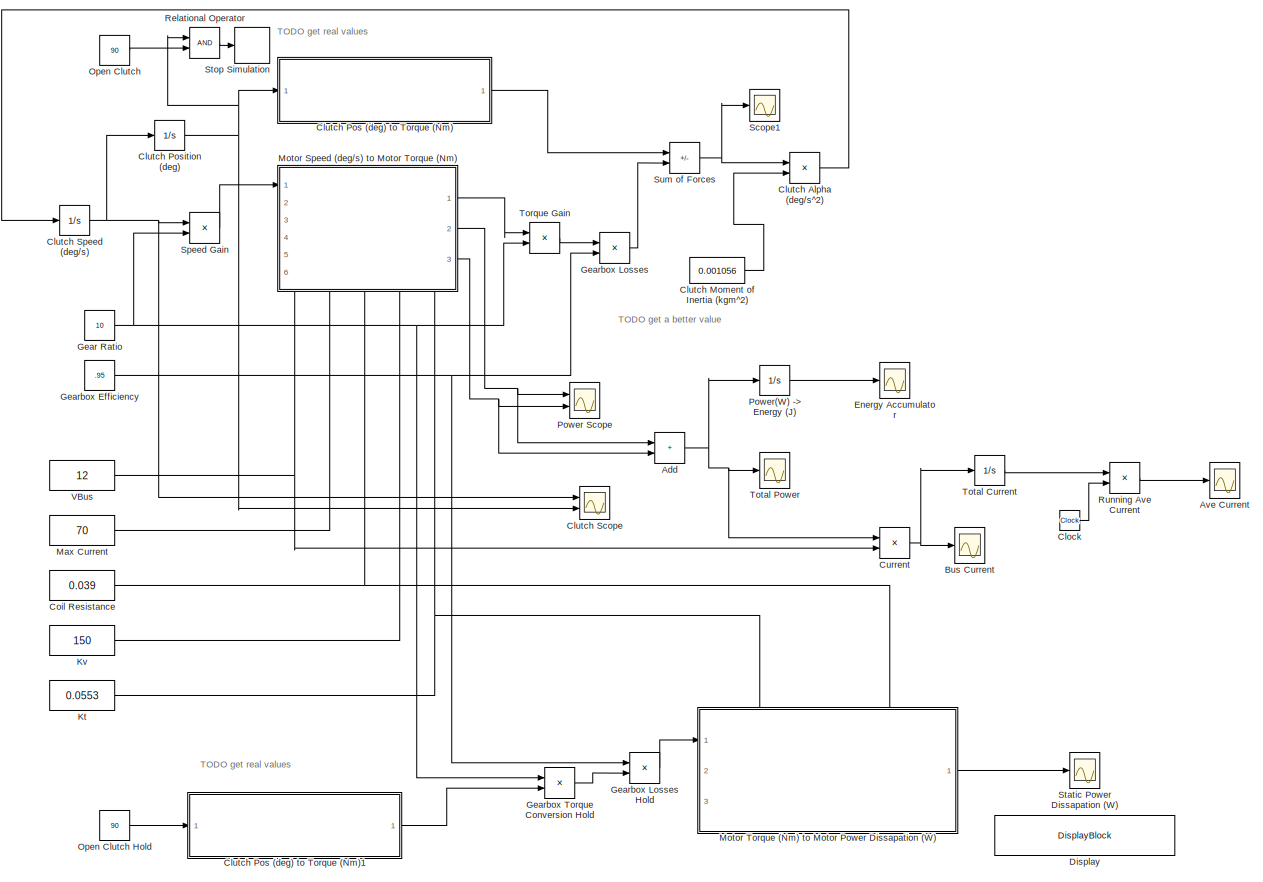
[diagram: root canvas - part 1/1, most of the canvas]
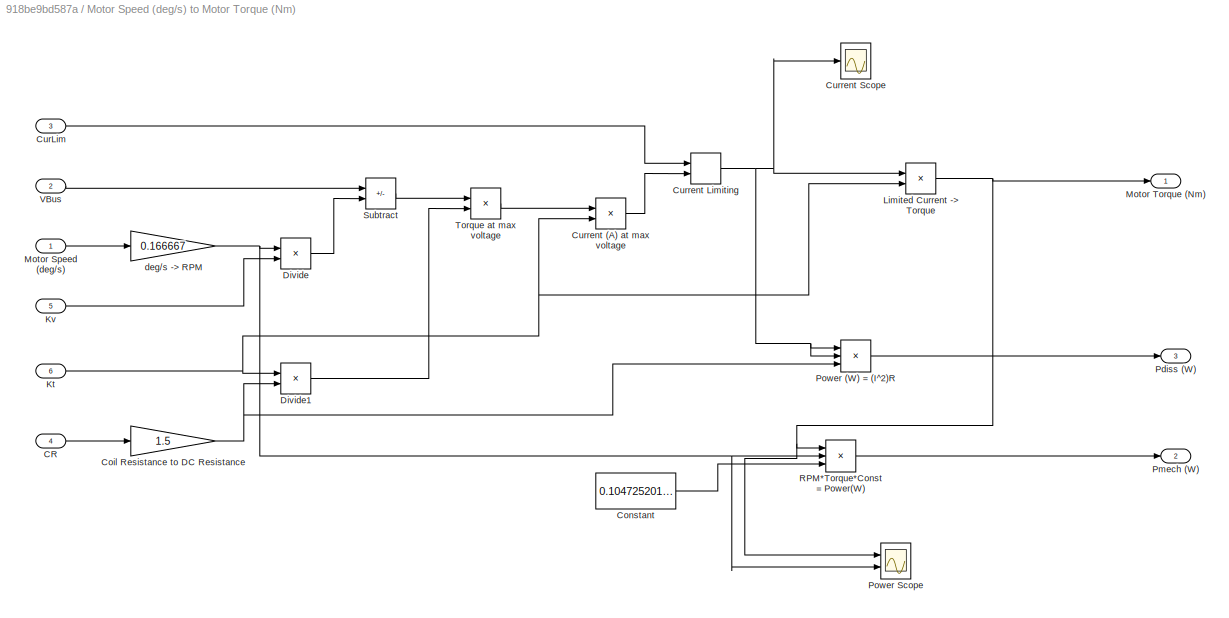
MODEL slx_918be9bd587a
KIND model
CONFIG AbsTol = auto
CONFIG EnableMultiTasking = off
CONFIG FixedStep = auto
CONFIG MaxStep = auto
CONFIG MinStep = auto
CONFIG RelTol = 1e-3
CONFIG SampleTimeConstraint = Unconstrained
CONFIG SolverName = VariableStepAuto
CONFIG StartTime = 0.0
CONFIG StopTime = 1
BLOCK [Sum] Add
  IconShape = rectangular
  Ports = [2, 1]
BLOCK [Scope] Ave Current
  Floating = off
  NumInputPorts = 1
  Ports = [1]
  ScopeSpecificationString = Simulink.scopes.TimeScopeBlockCfg('CurrentConfiguration', extmgr.ConfigurationSet(extmgr.Configuration('Core','General UI',true),extmgr.Configuration('Core','Source UI',true),extmgr.Configuration('Sources','WiredSimulink',true,'DataLoggingVariableName','ScopeData4'),extmgr.Configuration('Visuals','Time Domain',true,'SerializedDisplays',{struct('MinYLimReal','21.28195','MaxYLimReal','47.33747','YLa...<+1533ch>
BLOCK [Scope] Bus Current
  Floating = off
  NumInputPorts = 1
  Ports = [1]
  ScopeSpecificationString = Simulink.scopes.TimeScopeBlockCfg('CurrentConfiguration', extmgr.ConfigurationSet(extmgr.Configuration('Core','General UI',true),extmgr.Configuration('Core','Source UI',true),extmgr.Configuration('Sources','WiredSimulink',true,'DataLoggingVariableName','ScopeData3'),extmgr.Configuration('Visuals','Time Domain',true,'SerializedDisplays',{struct('MinYLimReal','11.04462','MaxYLimReal','69.82307','YLa...<+1545ch>
BLOCK [Clock] Clock
BLOCK [Product] Clutch Alpha (deg//s^2)
  Inputs = */
  Ports = [2, 1]
BLOCK [Constant] Clutch Moment of Inertia (kgm^2)
  Value = 0.001056
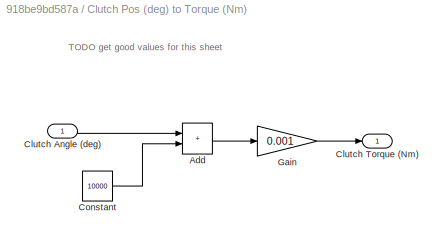
BLOCK [SubSystem] Clutch Pos (deg) to Torque (Nm)
  Ports = [1, 1]
  RequestExecContextInheritance = off
BLOCK [Sum] Clutch Pos (deg) to Torque (Nm)/Add
  IconShape = rectangular
  Ports = [2, 1]
BLOCK [Inport] Clutch Pos (deg) to Torque (Nm)/Clutch Angle (deg)
BLOCK [Outport] Clutch Pos (deg) to Torque (Nm)/Clutch Torque (Nm)
BLOCK [Constant] Clutch Pos (deg) to Torque (Nm)/Constant
  Value = 10000
BLOCK [Gain] Clutch Pos (deg) to Torque (Nm)/Gain
  Gain = 0.001
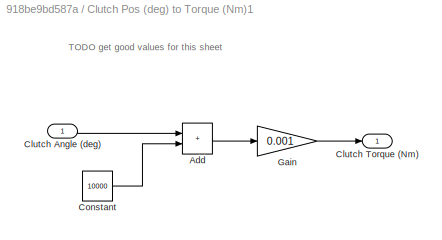
BLOCK [SubSystem] Clutch Pos (deg) to Torque (Nm)1
  Ports = [1, 1]
  RequestExecContextInheritance = off
BLOCK [Sum] Clutch Pos (deg) to Torque (Nm)1/Add
  IconShape = rectangular
  Ports = [2, 1]
BLOCK [Inport] Clutch Pos (deg) to Torque (Nm)1/Clutch Angle (deg)
BLOCK [Outport] Clutch Pos (deg) to Torque (Nm)1/Clutch Torque (Nm)
BLOCK [Constant] Clutch Pos (deg) to Torque (Nm)1/Constant
  Value = 10000
BLOCK [Gain] Clutch Pos (deg) to Torque (Nm)1/Gain
  Gain = 0.001
BLOCK [Integrator] Clutch Position (deg)
  Ports = [1, 1]
BLOCK [Scope] Clutch Scope
  Floating = off
  NumInputPorts = 2
  Ports = [2]
  ScopeSpecificationString = Simulink.scopes.TimeScopeBlockCfg('CurrentConfiguration', extmgr.ConfigurationSet(extmgr.Configuration('Core','General UI',true),extmgr.Configuration('Core','Source UI',true),extmgr.Configuration('Sources','WiredSimulink',true),extmgr.Configuration('Visuals','Time Domain',true,'SerializedDisplays',{struct('MinYLimReal','-122.3582','MaxYLimReal','1101.22379','YLabelReal','','MinYLimMag',' 0.00000',...<+1432ch>
BLOCK [Integrator] Clutch Speed (deg//s)
  Ports = [1, 1]
BLOCK [Constant] Coil Resistance
  Value = 0.039
BLOCK [Product] Current
  Inputs = */
  Ports = [2, 1]
BLOCK [DisplayBlock] Display
  Format = short
  LabelPosition = Hide
  Transparency = 1
BLOCK [Scope] Energy Accumulator
  Floating = off
  NumInputPorts = 1
  Ports = [1]
  ScopeSpecificationString = Simulink.scopes.TimeScopeBlockCfg('CurrentConfiguration', extmgr.ConfigurationSet(extmgr.Configuration('Core','General UI',true),extmgr.Configuration('Core','Source UI',true),extmgr.Configuration('Sources','WiredSimulink',true,'DataLoggingVariableName','ScopeData2'),extmgr.Configuration('Visuals','Time Domain',true,'SerializedDisplays',{struct('MinYLimReal','-4.72008','MaxYLimReal','42.48074','YLa...<+1504ch>
BLOCK [Constant] Gear Ratio
  Value = 10
BLOCK [Constant] Gearbox Efficiency
  Value = .95
BLOCK [Product] Gearbox Losses
  Ports = [2, 1]
BLOCK [Product] Gearbox Losses Hold
  Ports = [2, 1]
BLOCK [Product] Gearbox Torque Conversion Hold
  Inputs = /*
  Ports = [2, 1]
BLOCK [Constant] Kt
  Value = 0.0553
BLOCK [Constant] Kv
  Value = 150
BLOCK [Constant] Max Current
  Value = 70
BLOCK [SubSystem] Motor Speed (deg//s) to Motor Torque (Nm)
  NameLocation = top
  PortSchema = {"entries":[{"content":{"sides":[{"content":{"connectorIds":["In1"]},"type":"ConnectorPlacement.EquallySpacedRectSide","uuid":"7e3d6259-f020-48d4-ab2f-cc02f3e205f3"},{"content":{"connectorIds":["Out1","Out2","Out3"],"side":"RIGHT"},"type":"ConnectorPlacement.EquallySpacedRectSide","uuid":"df711253-8a83-44a2-b4f6-36021a4fbdad"},{"content":{"connectorIds":[],"side":"TOP"},"type":"ConnectorPlacement....<+427ch>
  Ports = [6, 3]
  RequestExecContextInheritance = off
BLOCK [Inport] Motor Speed (deg//s) to Motor Torque (Nm)/CR
  Port = 4
BLOCK [Gain] Motor Speed (deg//s) to Motor Torque (Nm)/Coil Resistance to DC Resistance
  Gain = 1.5
BLOCK [Constant] Motor Speed (deg//s) to Motor Torque (Nm)/Constant
  Value = 0.10472520107
BLOCK [Inport] Motor Speed (deg//s) to Motor Torque (Nm)/CurLim
  Port = 3
BLOCK [Product] Motor Speed (deg//s) to Motor Torque (Nm)/Current (A) at max voltage
  Inputs = */
  Ports = [2, 1]
BLOCK [MinMax] Motor Speed (deg//s) to Motor Torque (Nm)/Current Limiting
  Inputs = 2
  Ports = [2, 1]
BLOCK [Scope] Motor Speed (deg//s) to Motor Torque (Nm)/Current Scope
  Floating = off
  NumInputPorts = 1
  Ports = [1]
  ScopeSpecificationString = Simulink.scopes.TimeScopeBlockCfg('CurrentConfiguration', extmgr.ConfigurationSet(extmgr.Configuration('Core','General UI',true),extmgr.Configuration('Core','Source UI',true),extmgr.Configuration('Sources','WiredSimulink',true,'DataLoggingVariableName','ScopeData2'),extmgr.Configuration('Visuals','Time Domain',true,'SerializedDisplays',{struct('MinYLimReal','12.8595','MaxYLimReal','76.34894','YLab...<+1475ch>
BLOCK [Product] Motor Speed (deg//s) to Motor Torque (Nm)/Divide
  Inputs = */
  Ports = [2, 1]
BLOCK [Product] Motor Speed (deg//s) to Motor Torque (Nm)/Divide1
  Inputs = */
  Ports = [2, 1]
BLOCK [Inport] Motor Speed (deg//s) to Motor Torque (Nm)/Kt
  Port = 6
BLOCK [Inport] Motor Speed (deg//s) to Motor Torque (Nm)/Kv
  Port = 5
BLOCK [Product] Motor Speed (deg//s) to Motor Torque (Nm)/Limited Current -> Torque
  Ports = [2, 1]
BLOCK [Inport] Motor Speed (deg//s) to Motor Torque (Nm)/Motor Speed (deg//s)
BLOCK [Outport] Motor Speed (deg//s) to Motor Torque (Nm)/Motor Torque (Nm)
BLOCK [Outport] Motor Speed (deg//s) to Motor Torque (Nm)/Pdiss (W)
  Port = 3
BLOCK [Outport] Motor Speed (deg//s) to Motor Torque (Nm)/Pmech (W)
  Port = 2
BLOCK [Product] Motor Speed (deg//s) to Motor Torque (Nm)/Power (W) = (I^2)R
  Inputs = 3
  Ports = [3, 1]
BLOCK [Scope] Motor Speed (deg//s) to Motor Torque (Nm)/Power Scope
  Floating = off
  NumInputPorts = 2
  Ports = [2]
  ScopeSpecificationString = Simulink.scopes.TimeScopeBlockCfg('CurrentConfiguration', extmgr.ConfigurationSet(extmgr.Configuration('Core','General UI',true),extmgr.Configuration('Core','Source UI',true),extmgr.Configuration('Sources','WiredSimulink',true,'DataLoggingVariableName','ScopeData1'),extmgr.Configuration('Visuals','Time Domain',true,'SerializedDisplays',{struct('MinYLimReal','-203.93074','MaxYLimReal','1835.37666',...<+1560ch>
BLOCK [Product] Motor Speed (deg//s) to Motor Torque (Nm)/RPM*Torque*Const = Power(W)
  Inputs = 3
  Ports = [3, 1]
BLOCK [Sum] Motor Speed (deg//s) to Motor Torque (Nm)/Subtract
  IconShape = rectangular
  Inputs = +-
  Ports = [2, 1]
BLOCK [Product] Motor Speed (deg//s) to Motor Torque (Nm)/Torque at max voltage
  Ports = [2, 1]
BLOCK [Inport] Motor Speed (deg//s) to Motor Torque (Nm)/VBus
  Port = 2
BLOCK [Gain] Motor Speed (deg//s) to Motor Torque (Nm)/deg//s -> RPM
  Gain = 0.166667
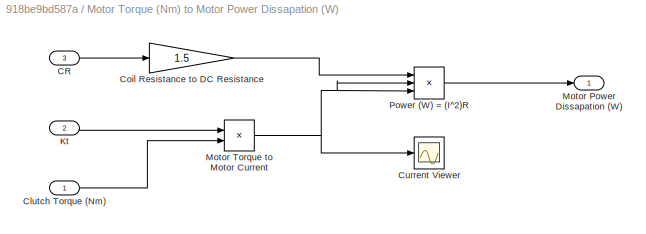
BLOCK [SubSystem] Motor Torque (Nm) to Motor Power Dissapation (W)
  PortSchema = {"entries":[{"content":{"sides":[{"content":{"connectorIds":["In1"]},"type":"ConnectorPlacement.EquallySpacedRectSide","uuid":"3ec64108-34b1-4214-af14-de7d9a6b89d7"},{"content":{"connectorIds":["Out1"],"side":"RIGHT"},"type":"ConnectorPlacement.EquallySpacedRectSide","uuid":"a66a176f-0d37-451a-b520-e1afd774ae54"},{"content":{"connectorIds":["In2","In3"],"side":"TOP"},"type":"ConnectorPlacement.Equ...<+251ch>
  Ports = [3, 1]
  RequestExecContextInheritance = off
BLOCK [Inport] Motor Torque (Nm) to Motor Power Dissapation (W)/CR
  Port = 3
BLOCK [Inport] Motor Torque (Nm) to Motor Power Dissapation (W)/Clutch Torque (Nm)
BLOCK [Gain] Motor Torque (Nm) to Motor Power Dissapation (W)/Coil Resistance to DC Resistance
  Gain = 1.5
BLOCK [Scope] Motor Torque (Nm) to Motor Power Dissapation (W)/Current Viewer
  Floating = off
  NumInputPorts = 1
  Ports = [1]
  ScopeSpecificationString = Simulink.scopes.TimeScopeBlockCfg('CurrentConfiguration', extmgr.ConfigurationSet(extmgr.Configuration('Core','General UI',true),extmgr.Configuration('Core','Source UI',true),extmgr.Configuration('Sources','WiredSimulink',true,'DataLoggingVariableName','ScopeData4'),extmgr.Configuration('Visuals','Time Domain',true,'SerializedDisplays',{struct('MinYLimReal','7.33363','MaxYLimReal','27.33363','YLab...<+1425ch>
BLOCK [Inport] Motor Torque (Nm) to Motor Power Dissapation (W)/Kt
  Port = 2
BLOCK [Outport] Motor Torque (Nm) to Motor Power Dissapation (W)/Motor Power Dissapation (W)
BLOCK [Product] Motor Torque (Nm) to Motor Power Dissapation (W)/Motor Torque to Motor Current
  Inputs = /*
  Ports = [2, 1]
BLOCK [Product] Motor Torque (Nm) to Motor Power Dissapation (W)/Power (W) = (I^2)R
  Inputs = 3
  Ports = [3, 1]
BLOCK [Constant] Open Clutch
  Value = 90
BLOCK [Constant] Open Clutch Hold
  Value = 90
BLOCK [Scope] Power Scope
  Floating = off
  NumInputPorts = 2
  Ports = [2]
  ScopeSpecificationString = Simulink.scopes.TimeScopeBlockCfg('CurrentConfiguration', extmgr.ConfigurationSet(extmgr.Configuration('Core','General UI',true),extmgr.Configuration('Core','Source UI',true),extmgr.Configuration('Sources','WiredSimulink',true,'DataLoggingVariableName','ScopeData1'),extmgr.Configuration('Visuals','Time Domain',true,'SerializedDisplays',{struct('MinYLimReal','-60.08658','MaxYLimReal','540.77926','Y...<+1575ch>
BLOCK [Integrator] Power(W) -> Energy (J)
  Ports = [1, 1]
BLOCK [RelationalOperator] Relational Operator
  InputSameDT = off
  OutDataTypeStr = boolean
  Ports = [2, 1]
  RndMeth = Simplest
BLOCK [Product] Running Ave Current
  Inputs = */
  Ports = [2, 1]
BLOCK [Scope] Scope1
  Floating = off
  NumInputPorts = 1
  Ports = [1]
  ScopeSpecificationString = Simulink.scopes.TimeScopeBlockCfg('CurrentConfiguration', extmgr.ConfigurationSet(extmgr.Configuration('Core','General UI',true),extmgr.Configuration('Core','Source UI',true),extmgr.Configuration('Sources','WiredSimulink',true,'DataLoggingVariableName','ScopeData1'),extmgr.Configuration('Visuals','Time Domain',true,'SerializedDisplays',{struct('MinYLimReal','-15.20461','MaxYLimReal','59.15379','YL...<+1444ch>
BLOCK [Product] Speed Gain
  Ports = [2, 1]
BLOCK [Scope] Static Power Dissapation (W)
  Floating = off
  NumInputPorts = 1
  Ports = [1]
  ScopeSpecificationString = Simulink.scopes.TimeScopeBlockCfg('CurrentConfiguration', extmgr.ConfigurationSet(extmgr.Configuration('Core','General UI',true),extmgr.Configuration('Core','Source UI',true),extmgr.Configuration('Sources','WiredSimulink',true,'DataLoggingVariableName','ScopeData2'),extmgr.Configuration('Visuals','Time Domain',true,'SerializedDisplays',{struct('MinYLimReal','-27.42199','MaxYLimReal','322.08099','Y...<+1539ch>
BLOCK [Stop] Stop Simulation
BLOCK [Sum] Sum of Forces
  IconShape = rectangular
  Inputs = -+
  Ports = [2, 1]
BLOCK [Product] Torque Gain
  Ports = [2, 1]
BLOCK [Integrator] Total Current
  Ports = [1, 1]
BLOCK [Scope] Total Power
  Floating = off
  NumInputPorts = 1
  Ports = [1]
  ScopeSpecificationString = Simulink.scopes.TimeScopeBlockCfg('CurrentConfiguration', extmgr.ConfigurationSet(extmgr.Configuration('Core','General UI',true),extmgr.Configuration('Core','Source UI',true),extmgr.Configuration('Sources','WiredSimulink',true,'DataLoggingVariableName','ScopeData3'),extmgr.Configuration('Visuals','Time Domain',true,'SerializedDisplays',{struct('MinYLimReal','132.53545','MaxYLimReal','837.87681','Y...<+1495ch>
BLOCK [Constant] VBus
  Value = 12
ANNOTATION (root): TODO get a better value
ANNOTATION (root): TODO get real values
ANNOTATION Clutch Pos (deg) to Torque (Nm): TODO get good values for this sheet
ANNOTATION Clutch Pos (deg) to Torque (Nm)1: TODO get good values for this sheet
NET Add:1 -> Current:1, Power(W) -> Energy (J):1, Total Power:1
LINE Clock:1 -> Running Ave Current:2
LINE Clutch Alpha (deg//s^2):1 -> Clutch Speed (deg//s):1
LINE Clutch Moment of Inertia (kgm^2):1 -> Clutch Alpha (deg//s^2):2
LINE Clutch Pos (deg) to Torque (Nm)/Add:1 -> Clutch Pos (deg) to Torque (Nm)/Gain:1
LINE Clutch Pos (deg) to Torque (Nm)/Clutch Angle (deg):1 -> Clutch Pos (deg) to Torque (Nm)/Add:1
LINE Clutch Pos (deg) to Torque (Nm)/Constant:1 -> Clutch Pos (deg) to Torque (Nm)/Add:2
LINE Clutch Pos (deg) to Torque (Nm)/Gain:1 -> Clutch Pos (deg) to Torque (Nm)/Clutch Torque (Nm):1
LINE Clutch Pos (deg) to Torque (Nm)1/Add:1 -> Clutch Pos (deg) to Torque (Nm)1/Gain:1
LINE Clutch Pos (deg) to Torque (Nm)1/Clutch Angle (deg):1 -> Clutch Pos (deg) to Torque (Nm)1/Add:1
LINE Clutch Pos (deg) to Torque (Nm)1/Constant:1 -> Clutch Pos (deg) to Torque (Nm)1/Add:2
LINE Clutch Pos (deg) to Torque (Nm)1/Gain:1 -> Clutch Pos (deg) to Torque (Nm)1/Clutch Torque (Nm):1
LINE Clutch Pos (deg) to Torque (Nm)1:1 -> Gearbox Torque Conversion Hold:2
LINE Clutch Pos (deg) to Torque (Nm):1 -> Sum of Forces:1
NET Clutch Position (deg):1 -> Clutch Pos (deg) to Torque (Nm):1, Clutch Scope:2, Relational Operator:1
NET Clutch Speed (deg//s):1 -> Clutch Position (deg):1, Clutch Scope:1, Speed Gain:1
NET Coil Resistance:1 -> Motor Speed (deg//s) to Motor Torque (Nm):4, Motor Torque (Nm) to Motor Power Dissapation (W):3
NET Current:1 -> Bus Current:1, Total Current:1
NET Gear Ratio:1 -> Gearbox Torque Conversion Hold:1, Speed Gain:2, Torque Gain:2
NET Gearbox Efficiency:1 -> Gearbox Losses Hold:1, Gearbox Losses:2
LINE Gearbox Losses Hold:1 -> Motor Torque (Nm) to Motor Power Dissapation (W):1
LINE Gearbox Losses:1 -> Sum of Forces:2
LINE Gearbox Torque Conversion Hold:1 -> Gearbox Losses Hold:2
NET Kt:1 -> Motor Speed (deg//s) to Motor Torque (Nm):6, Motor Torque (Nm) to Motor Power Dissapation (W):2
LINE Kv:1 -> Motor Speed (deg//s) to Motor Torque (Nm):5
LINE Max Current:1 -> Motor Speed (deg//s) to Motor Torque (Nm):3
LINE Motor Speed (deg//s) to Motor Torque (Nm)/CR:1 -> Motor Speed (deg//s) to Motor Torque (Nm)/Coil Resistance to DC Resistance:1
NET Motor Speed (deg//s) to Motor Torque (Nm)/Coil Resistance to DC Resistance:1 -> Motor Speed (deg//s) to Motor Torque (Nm)/Divide1:2, Motor Speed (deg//s) to Motor Torque (Nm)/Power (W) = (I^2)R:3
LINE Motor Speed (deg//s) to Motor Torque (Nm)/Constant:1 -> Motor Speed (deg//s) to Motor Torque (Nm)/RPM*Torque*Const = Power(W):3
LINE Motor Speed (deg//s) to Motor Torque (Nm)/CurLim:1 -> Motor Speed (deg//s) to Motor Torque (Nm)/Current Limiting:1
LINE Motor Speed (deg//s) to Motor Torque (Nm)/Current (A) at max voltage:1 -> Motor Speed (deg//s) to Motor Torque (Nm)/Current Limiting:2
NET Motor Speed (deg//s) to Motor Torque (Nm)/Current Limiting:1 -> Motor Speed (deg//s) to Motor Torque (Nm)/Current Scope:1, Motor Speed (deg//s) to Motor Torque (Nm)/Limited Current -> Torque:1, Motor Speed (deg//s) to Motor Torque (Nm)/Power (W) = (I^2)R:1, Motor Speed (deg//s) to Motor Torque (Nm)/Power (W) = (I^2)R:2
LINE Motor Speed (deg//s) to Motor Torque (Nm)/Divide1:1 -> Motor Speed (deg//s) to Motor Torque (Nm)/Torque at max voltage:2
LINE Motor Speed (deg//s) to Motor Torque (Nm)/Divide:1 -> Motor Speed (deg//s) to Motor Torque (Nm)/Subtract:2
NET Motor Speed (deg//s) to Motor Torque (Nm)/Kt:1 -> Motor Speed (deg//s) to Motor Torque (Nm)/Current (A) at max voltage:2, Motor Speed (deg//s) to Motor Torque (Nm)/Divide1:1, Motor Speed (deg//s) to Motor Torque (Nm)/Limited Current -> Torque:2
LINE Motor Speed (deg//s) to Motor Torque (Nm)/Kv:1 -> Motor Speed (deg//s) to Motor Torque (Nm)/Divide:2
NET Motor Speed (deg//s) to Motor Torque (Nm)/Limited Current -> Torque:1 -> Motor Speed (deg//s) to Motor Torque (Nm)/Motor Torque (Nm):1, Motor Speed (deg//s) to Motor Torque (Nm)/Power Scope:1, Motor Speed (deg//s) to Motor Torque (Nm)/RPM*Torque*Const = Power(W):1
LINE Motor Speed (deg//s) to Motor Torque (Nm)/Motor Speed (deg//s):1 -> Motor Speed (deg//s) to Motor Torque (Nm)/deg//s -> RPM:1
LINE Motor Speed (deg//s) to Motor Torque (Nm)/Power (W) = (I^2)R:1 -> Motor Speed (deg//s) to Motor Torque (Nm)/Pdiss (W):1
LINE Motor Speed (deg//s) to Motor Torque (Nm)/RPM*Torque*Const = Power(W):1 -> Motor Speed (deg//s) to Motor Torque (Nm)/Pmech (W):1
LINE Motor Speed (deg//s) to Motor Torque (Nm)/Subtract:1 -> Motor Speed (deg//s) to Motor Torque (Nm)/Torque at max voltage:1
LINE Motor Speed (deg//s) to Motor Torque (Nm)/Torque at max voltage:1 -> Motor Speed (deg//s) to Motor Torque (Nm)/Current (A) at max voltage:1
LINE Motor Speed (deg//s) to Motor Torque (Nm)/VBus:1 -> Motor Speed (deg//s) to Motor Torque (Nm)/Subtract:1
NET Motor Speed (deg//s) to Motor Torque (Nm)/deg//s -> RPM:1 -> Motor Speed (deg//s) to Motor Torque (Nm)/Divide:1, Motor Speed (deg//s) to Motor Torque (Nm)/Power Scope:2, Motor Speed (deg//s) to Motor Torque (Nm)/RPM*Torque*Const = Power(W):2
LINE Motor Speed (deg//s) to Motor Torque (Nm):1 -> Torque Gain:1
NET Motor Speed (deg//s) to Motor Torque (Nm):2 -> Add:1, Power Scope:1
NET Motor Speed (deg//s) to Motor Torque (Nm):3 -> Add:2, Power Scope:2
LINE Motor Torque (Nm) to Motor Power Dissapation (W)/CR:1 -> Motor Torque (Nm) to Motor Power Dissapation (W)/Coil Resistance to DC Resistance:1
LINE Motor Torque (Nm) to Motor Power Dissapation (W)/Clutch Torque (Nm):1 -> Motor Torque (Nm) to Motor Power Dissapation (W)/Motor Torque to Motor Current:2
LINE Motor Torque (Nm) to Motor Power Dissapation (W)/Coil Resistance to DC Resistance:1 -> Motor Torque (Nm) to Motor Power Dissapation (W)/Power (W) = (I^2)R:1
LINE Motor Torque (Nm) to Motor Power Dissapation (W)/Kt:1 -> Motor Torque (Nm) to Motor Power Dissapation (W)/Motor Torque to Motor Current:1
NET Motor Torque (Nm) to Motor Power Dissapation (W)/Motor Torque to Motor Current:1 -> Motor Torque (Nm) to Motor Power Dissapation (W)/Current Viewer:1, Motor Torque (Nm) to Motor Power Dissapation (W)/Power (W) = (I^2)R:2, Motor Torque (Nm) to Motor Power Dissapation (W)/Power (W) = (I^2)R:3
LINE Motor Torque (Nm) to Motor Power Dissapation (W)/Power (W) = (I^2)R:1 -> Motor Torque (Nm) to Motor Power Dissapation (W)/Motor Power Dissapation (W):1
LINE Motor Torque (Nm) to Motor Power Dissapation (W):1 -> Static Power Dissapation (W):1
LINE Open Clutch Hold:1 -> Clutch Pos (deg) to Torque (Nm)1:1
LINE Open Clutch:1 -> Relational Operator:2
LINE Power(W) -> Energy (J):1 -> Energy Accumulator:1
LINE Relational Operator:1 -> Stop Simulation:1
LINE Running Ave Current:1 -> Ave Current:1
LINE Speed Gain:1 -> Motor Speed (deg//s) to Motor Torque (Nm):1
NET Sum of Forces:1 -> Clutch Alpha (deg//s^2):1, Scope1:1
LINE Torque Gain:1 -> Gearbox Losses:1
LINE Total Current:1 -> Running Ave Current:1
NET VBus:1 -> Current:2, Motor Speed (deg//s) to Motor Torque (Nm):2
note: NET lines group one-source signal fan-out (src -> all destinations, sorted); 1:1 wires keep LINE
